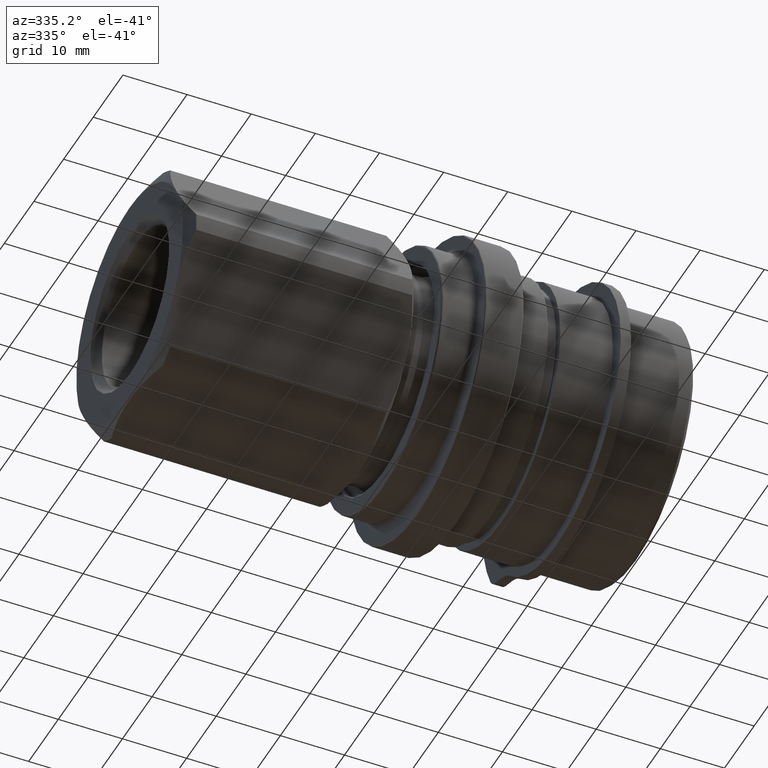
[diagram: clean part render]
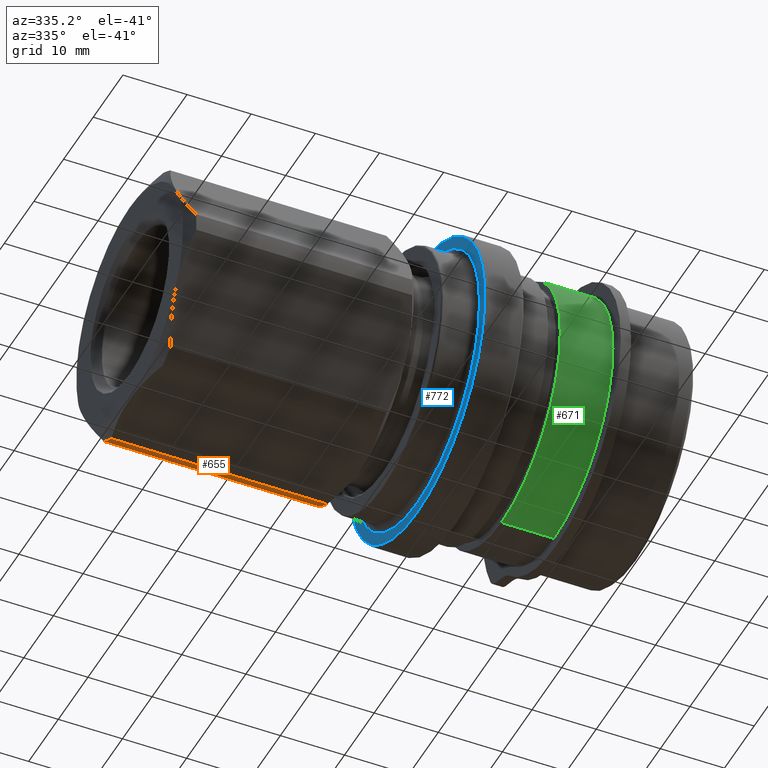
[diagram: same view with three faces highlighted in distinct colors, each labeled with its STEP entity id]
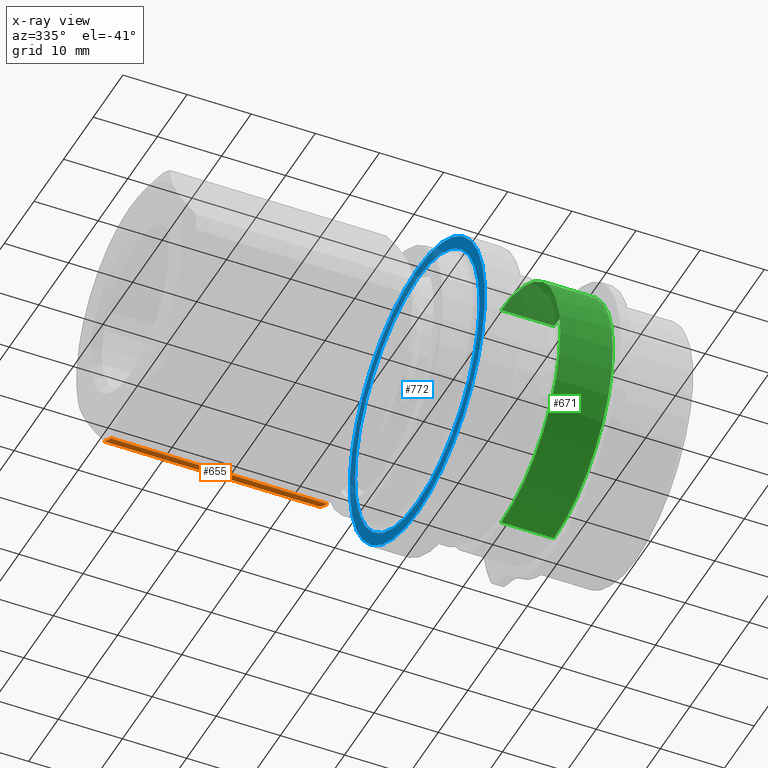
[diagram: x-ray of the same camera — body ghosted, the three highlighted faces saturated]
A machine part, auxiliary view with three faces highlighted in distinct colors.
The next image is the same camera in x-ray (body ghosted, the three faces saturated) — at least one of them is partly hidden behind the body in this view.
Their STEP definitions:

[orange] entity #655 — the highlighted cylindrical surface (partial cylindrical patch) has radius 20 mm, axis along (1, 0, -0).
#1 = DIRECTION ( 'NONE',  ( 0.0000000000000000000, -4.440892098500628100E-016, -1.000000000000000000 ) ) ;
#5 = DIRECTION ( 'NONE',  ( 1.000000000000000000, 0.0000000000000000000, -0.0000000000000000000 ) ) ;
#129 = CARTESIAN_POINT ( 'NONE',  ( -25.44529946162076000, 8.717797887081332000, -18.00000000000000000 ) ) ;
#251 = CARTESIAN_POINT ( 'NONE',  ( 9.400000000000003900, 0.0000000000000000000, 0.0000000000000000000 ) ) ;
#490 = EDGE_LOOP ( 'NONE', ( #1389, #1246, #1151, #1355 ) ) ;
#655 = ADVANCED_FACE ( 'NONE', ( #3259 ), #3255, .T. ) ;
#714 = VERTEX_POINT ( 'NONE', #129 ) ;
#827 = VERTEX_POINT ( 'NONE', #3961 ) ;
#908 = VERTEX_POINT ( 'NONE', #4330 ) ;
#981 = VERTEX_POINT ( 'NONE', #4040 ) ;
#1063 = AXIS2_PLACEMENT_3D ( 'NONE', #3796, #3773, #3696 ) ;
#1151 = ORIENTED_EDGE ( 'NONE', *, *, #3475, .F. ) ;
#1246 = ORIENTED_EDGE ( 'NONE', *, *, #1956, .T. ) ;
#1355 = ORIENTED_EDGE ( 'NONE', *, *, #2016, .T. ) ;
#1389 = ORIENTED_EDGE ( 'NONE', *, *, #3542, .T. ) ;
#1446 = DIRECTION ( 'NONE',  ( -1.000000000000000000, -0.0000000000000000000, 0.0000000000000000000 ) ) ;
#1575 = CARTESIAN_POINT ( 'NONE',  ( 9.400000000000003900, 11.22955832457921600, -16.54983443527073600 ) ) ;
#1580 = CARTESIAN_POINT ( 'NONE',  ( 9.400000000000003900, 8.717797887081332000, -18.00000000000000000 ) ) ;
#1651 = DIRECTION ( 'NONE',  ( 1.000000000000000000, 0.0000000000000000000, -0.0000000000000000000 ) ) ;
#1782 = LINE ( 'NONE', #1580, #1793 ) ;
#1793 = VECTOR ( 'NONE', #1446, 1000.000000000000000 ) ;
#1883 = AXIS2_PLACEMENT_3D ( 'NONE', #251, #5, #1 ) ;
#1956 = EDGE_CURVE ( 'NONE', #908, #827, #3083, .T. ) ;
#2016 = EDGE_CURVE ( 'NONE', #981, #714, #1782, .T. ) ;
#2199 = CIRCLE ( 'NONE', #1063, 19.99999999999999600 ) ;
#2244 = CIRCLE ( 'NONE', #2819, 20.00000000000000000 ) ;
#2819 = AXIS2_PLACEMENT_3D ( 'NONE', #3871, #3919, #3757 ) ;
#3024 = VECTOR ( 'NONE', #1651, 1000.000000000000000 ) ;
#3083 = LINE ( 'NONE', #1575, #3024 ) ;
#3255 = CYLINDRICAL_SURFACE ( 'NONE', #1883, 19.99999999999999600 ) ;
#3259 = FACE_OUTER_BOUND ( 'NONE', #490, .T. ) ;
#3475 = EDGE_CURVE ( 'NONE', #981, #827, #2244, .T. ) ;
#3542 = EDGE_CURVE ( 'NONE', #714, #908, #2199, .T. ) ;
#3696 = DIRECTION ( 'NONE',  ( 0.0000000000000000000, -4.440892098500628100E-016, -1.000000000000000000 ) ) ;
#3757 = DIRECTION ( 'NONE',  ( 0.0000000000000000000, -4.440892098500628100E-016, -1.000000000000000000 ) ) ;
#3773 = DIRECTION ( 'NONE',  ( 1.000000000000000000, 0.0000000000000000000, -0.0000000000000000000 ) ) ;
#3796 = CARTESIAN_POINT ( 'NONE',  ( -25.44529946162076000, 0.0000000000000000000, 0.0000000000000000000 ) ) ;
#3871 = CARTESIAN_POINT ( 'NONE',  ( 8.245299461620765800, 0.0000000000000000000, 0.0000000000000000000 ) ) ;
#3919 = DIRECTION ( 'NONE',  ( 1.000000000000000000, 0.0000000000000000000, -0.0000000000000000000 ) ) ;
#3961 = CARTESIAN_POINT ( 'NONE',  ( 8.245299461620765800, 11.22955832457922100, -16.54983443527074300 ) ) ;
#4040 = CARTESIAN_POINT ( 'NONE',  ( 8.245299461620765800, 8.717797887081340800, -18.00000000000000000 ) ) ;
#4330 = CARTESIAN_POINT ( 'NONE',  ( -25.44529946162076000, 11.22955832457921600, -16.54983443527073600 ) ) ;

[blue] entity #772 — the highlighted planar face has unit normal (-1, 0, -0).
#519 = EDGE_LOOP ( 'NONE', ( #1213, #1383 ) ) ;
#545 = EDGE_LOOP ( 'NONE', ( #1189, #1286 ) ) ;
#772 = ADVANCED_FACE ( 'NONE', ( #3195, #3420 ), #4316, .T. ) ;
#872 = VERTEX_POINT ( 'NONE', #4360 ) ;
#886 = VERTEX_POINT ( 'NONE', #4348 ) ;
#893 = VERTEX_POINT ( 'NONE', #4296 ) ;
#900 = VERTEX_POINT ( 'NONE', #4311 ) ;
#1189 = ORIENTED_EDGE ( 'NONE', *, *, #1974, .T. ) ;
#1213 = ORIENTED_EDGE ( 'NONE', *, *, #1904, .T. ) ;
#1286 = ORIENTED_EDGE ( 'NONE', *, *, #1929, .T. ) ;
#1383 = ORIENTED_EDGE ( 'NONE', *, *, #1952, .T. ) ;
#1406 = DIRECTION ( 'NONE',  ( 1.000000000000000000, 0.0000000000000000000, 0.0000000000000000000 ) ) ;
#1442 = CARTESIAN_POINT ( 'NONE',  ( 18.24999999999999600, 4.470713197007353100E-016, 2.582013848347336000E-015 ) ) ;
#1491 = CARTESIAN_POINT ( 'NONE',  ( 18.24999999999999600, 4.470713197007353100E-016, 2.582013848347336000E-015 ) ) ;
#1492 = DIRECTION ( 'NONE',  ( 0.0000000000000000000, 0.0000000000000000000, 1.000000000000000000 ) ) ;
#1493 = DIRECTION ( 'NONE',  ( -1.000000000000000000, -0.0000000000000000000, -0.0000000000000000000 ) ) ;
#1524 = DIRECTION ( 'NONE',  ( 1.000000000000000000, 0.0000000000000000000, 0.0000000000000000000 ) ) ;
#1526 = DIRECTION ( 'NONE',  ( 0.0000000000000000000, 0.0000000000000000000, 1.000000000000000000 ) ) ;
#1565 = DIRECTION ( 'NONE',  ( 0.0000000000000000000, 0.0000000000000000000, 1.000000000000000000 ) ) ;
#1634 = CARTESIAN_POINT ( 'NONE',  ( 18.24999999999999600, 4.470713197007353100E-016, 2.582013848347336000E-015 ) ) ;
#1904 = EDGE_CURVE ( 'NONE', #886, #900, #3060, .T. ) ;
#1929 = EDGE_CURVE ( 'NONE', #893, #872, #3007, .T. ) ;
#1952 = EDGE_CURVE ( 'NONE', #900, #886, #2997, .T. ) ;
#1974 = EDGE_CURVE ( 'NONE', #872, #893, #3058, .T. ) ;
#2664 = AXIS2_PLACEMENT_3D ( 'NONE', #4302, #4340, #4301 ) ;
#2687 = AXIS2_PLACEMENT_3D ( 'NONE', #1442, #1524, #1526 ) ;
#2696 = AXIS2_PLACEMENT_3D ( 'NONE', #1634, #1406, #1565 ) ;
#2711 = AXIS2_PLACEMENT_3D ( 'NONE', #4220, #4307, #4413 ) ;
#2848 = AXIS2_PLACEMENT_3D ( 'NONE', #1491, #1493, #1492 ) ;
#2997 = CIRCLE ( 'NONE', #2848, 22.80000000000000100 ) ;
#3007 = CIRCLE ( 'NONE', #2696, 21.00000000000000000 ) ;
#3058 = CIRCLE ( 'NONE', #2687, 21.00000000000000000 ) ;
#3060 = CIRCLE ( 'NONE', #2664, 22.80000000000000100 ) ;
#3195 = FACE_OUTER_BOUND ( 'NONE', #519, .T. ) ;
#3420 = FACE_BOUND ( 'NONE', #545, .T. ) ;
#4220 = CARTESIAN_POINT ( 'NONE',  ( 18.24999999999999600, 20.00000000000000000, 2.582013848347336000E-015 ) ) ;
#4296 = CARTESIAN_POINT ( 'NONE',  ( 18.24999999999999600, 3.018829597910177600E-015, -20.99999999999999600 ) ) ;
#4301 = DIRECTION ( 'NONE',  ( 0.0000000000000000000, 0.0000000000000000000, 1.000000000000000000 ) ) ;
#4302 = CARTESIAN_POINT ( 'NONE',  ( 18.24999999999999600, 4.470713197007353100E-016, 2.582013848347336000E-015 ) ) ;
#4307 = DIRECTION ( 'NONE',  ( -1.000000000000000000, 0.0000000000000000000, -0.0000000000000000000 ) ) ;
#4311 = CARTESIAN_POINT ( 'NONE',  ( 18.24999999999999600, 3.251512489748174100E-015, -22.79999999999999700 ) ) ;
#4316 = PLANE ( 'NONE',  #2711 ) ;
#4340 = DIRECTION ( 'NONE',  ( -1.000000000000000000, -0.0000000000000000000, -0.0000000000000000000 ) ) ;
#4348 = CARTESIAN_POINT ( 'NONE',  ( 18.24999999999999600, 4.470713197007353100E-016, 22.80000000000000400 ) ) ;
#4360 = CARTESIAN_POINT ( 'NONE',  ( 18.24999999999999600, 4.470713197007353100E-016, 21.00000000000000400 ) ) ;
#4413 = DIRECTION ( 'NONE',  ( -0.0000000000000000000, 0.0000000000000000000, 1.000000000000000000 ) ) ;

[green] entity #671 — the highlighted cylindrical surface (partial cylindrical patch) has radius 19.9 mm, axis along (-1, -0, -0).
#25 = CARTESIAN_POINT ( 'NONE',  ( 12.79999999999999900, 4.470713197007353100E-016, 2.582013848347336000E-015 ) ) ;
#26 = CARTESIAN_POINT ( 'NONE',  ( 31.34999999999999400, 4.470713197007353100E-016, 19.90000000000000200 ) ) ;
#212 = DIRECTION ( 'NONE',  ( 0.0000000000000000000, 0.0000000000000000000, 1.000000000000000000 ) ) ;
#228 = DIRECTION ( 'NONE',  ( -1.000000000000000000, -0.0000000000000000000, -0.0000000000000000000 ) ) ;
#382 = ORIENTED_EDGE ( 'NONE', *, *, #1977, .F. ) ;
#455 = ORIENTED_EDGE ( 'NONE', *, *, #2103, .T. ) ;
#523 = ORIENTED_EDGE ( 'NONE', *, *, #2106, .T. ) ;
#593 = EDGE_LOOP ( 'NONE', ( #382, #523, #455, #623 ) ) ;
#623 = ORIENTED_EDGE ( 'NONE', *, *, #2088, .F. ) ;
#671 = ADVANCED_FACE ( 'NONE', ( #3447 ), #3176, .T. ) ;
#717 = VERTEX_POINT ( 'NONE', #26 ) ;
#856 = VERTEX_POINT ( 'NONE', #4393 ) ;
#897 = VERTEX_POINT ( 'NONE', #4320 ) ;
#944 = VERTEX_POINT ( 'NONE', #3996 ) ;
#1480 = CARTESIAN_POINT ( 'NONE',  ( 12.79999999999999900, 2.884118450003968300E-015, -19.89999999999999500 ) ) ;
#1520 = DIRECTION ( 'NONE',  ( -1.000000000000000000, -0.0000000000000000000, -0.0000000000000000000 ) ) ;
#1750 = CIRCLE ( 'NONE', #2748, 19.89999999999999900 ) ;
#1795 = CIRCLE ( 'NONE', #2788, 19.89999999999999900 ) ;
#1846 = LINE ( 'NONE', #2288, #1855 ) ;
#1855 = VECTOR ( 'NONE', #2328, 1000.000000000000000 ) ;
#1893 = AXIS2_PLACEMENT_3D ( 'NONE', #25, #228, #212 ) ;
#1977 = EDGE_CURVE ( 'NONE', #897, #856, #3043, .T. ) ;
#2088 = EDGE_CURVE ( 'NONE', #856, #717, #1750, .T. ) ;
#2103 = EDGE_CURVE ( 'NONE', #944, #717, #1846, .T. ) ;
#2106 = EDGE_CURVE ( 'NONE', #897, #944, #1795, .T. ) ;
#2288 = CARTESIAN_POINT ( 'NONE',  ( 12.79999999999999900, 4.470713197007353100E-016, 19.90000000000000200 ) ) ;
#2328 = DIRECTION ( 'NONE',  ( -1.000000000000000000, -0.0000000000000000000, -0.0000000000000000000 ) ) ;
#2385 = DIRECTION ( 'NONE',  ( 0.0000000000000000000, 0.0000000000000000000, 1.000000000000000000 ) ) ;
#2395 = DIRECTION ( 'NONE',  ( 0.0000000000000000000, 0.0000000000000000000, 1.000000000000000000 ) ) ;
#2441 = DIRECTION ( 'NONE',  ( -1.000000000000000000, -0.0000000000000000000, -0.0000000000000000000 ) ) ;
#2451 = CARTESIAN_POINT ( 'NONE',  ( 39.55000000000000400, 4.470713197007353100E-016, 2.582013848347336000E-015 ) ) ;
#2480 = CARTESIAN_POINT ( 'NONE',  ( 31.34999999999999400, 4.470713197007353100E-016, 2.582013848347336000E-015 ) ) ;
#2530 = DIRECTION ( 'NONE',  ( -1.000000000000000000, -0.0000000000000000000, -0.0000000000000000000 ) ) ;
#2748 = AXIS2_PLACEMENT_3D ( 'NONE', #2480, #2530, #2385 ) ;
#2788 = AXIS2_PLACEMENT_3D ( 'NONE', #2451, #2441, #2395 ) ;
#2945 = VECTOR ( 'NONE', #1520, 1000.000000000000000 ) ;
#3043 = LINE ( 'NONE', #1480, #2945 ) ;
#3176 = CYLINDRICAL_SURFACE ( 'NONE', #1893, 19.89999999999999900 ) ;
#3447 = FACE_OUTER_BOUND ( 'NONE', #593, .T. ) ;
#3996 = CARTESIAN_POINT ( 'NONE',  ( 39.55000000000000400, 4.470713197007353100E-016, 19.90000000000000200 ) ) ;
#4320 = CARTESIAN_POINT ( 'NONE',  ( 39.55000000000000400, 2.884118450003968300E-015, -19.89999999999999500 ) ) ;
#4393 = CARTESIAN_POINT ( 'NONE',  ( 31.34999999999999400, 2.884118450003968300E-015, -19.89999999999999500 ) ) ;